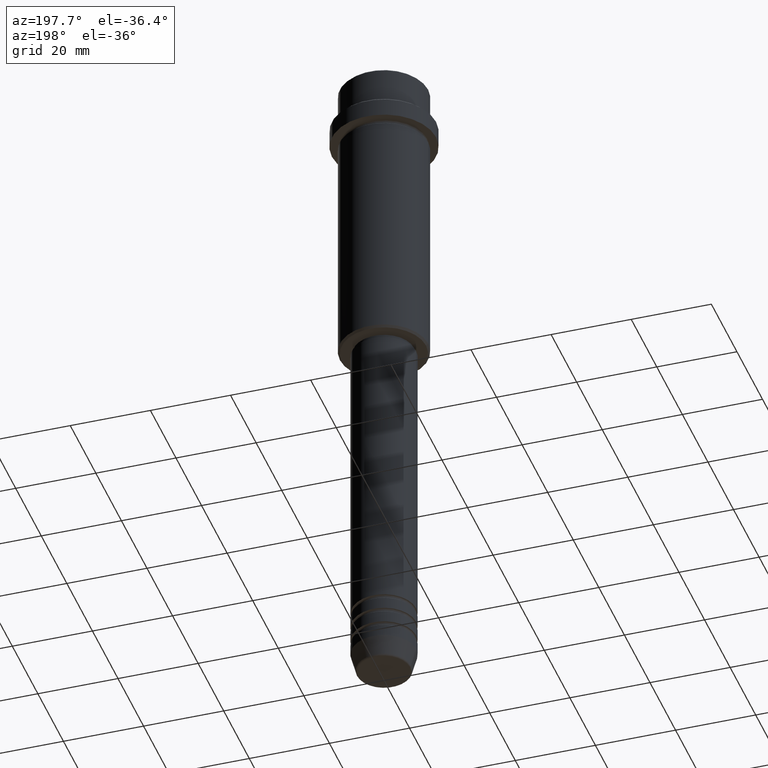
[diagram: clean part render]
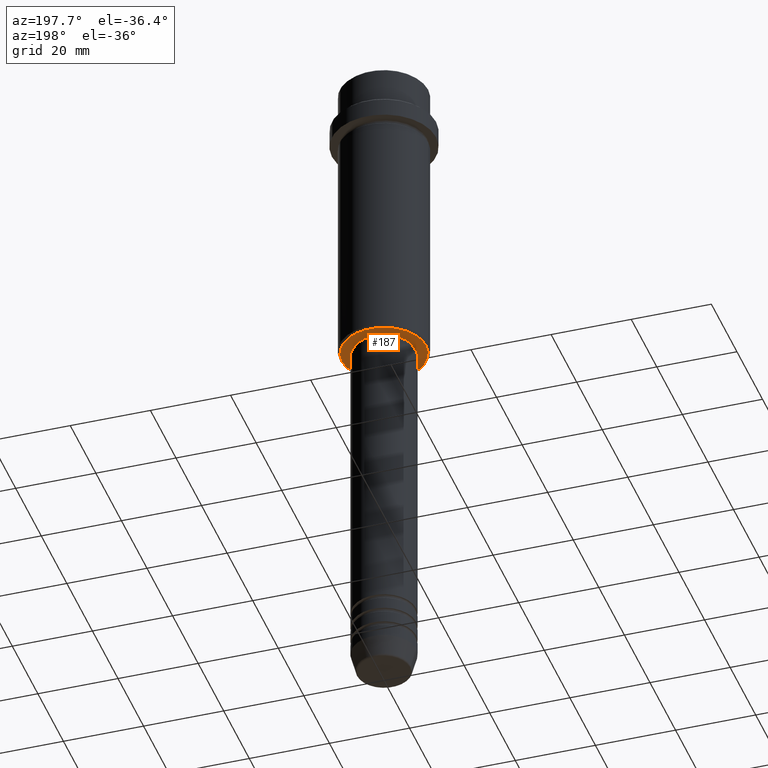
[diagram: same view with one face highlighted and labeled with its STEP entity id]
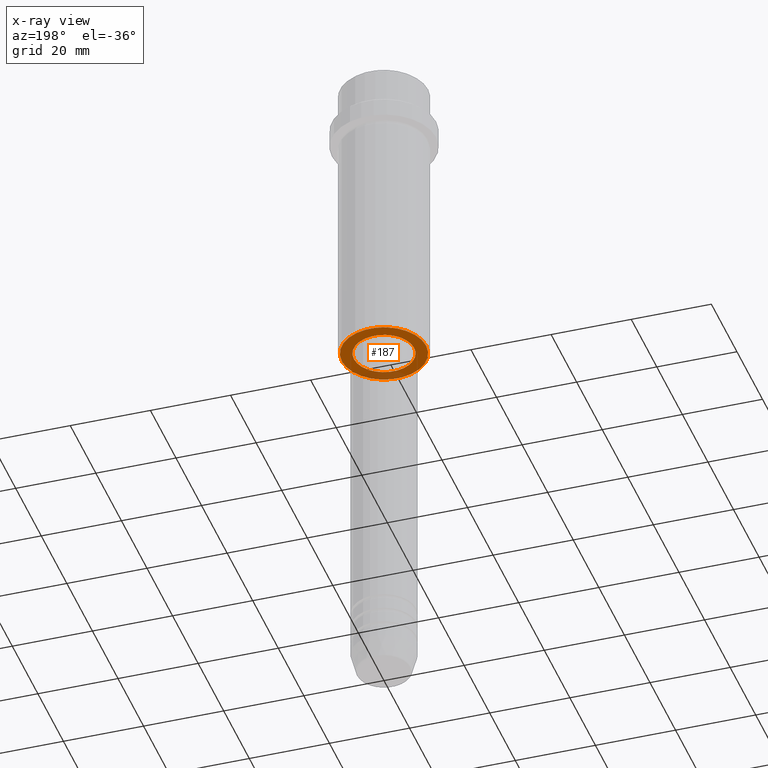
[diagram: x-ray of the same camera — body ghosted, the highlighted face saturated]
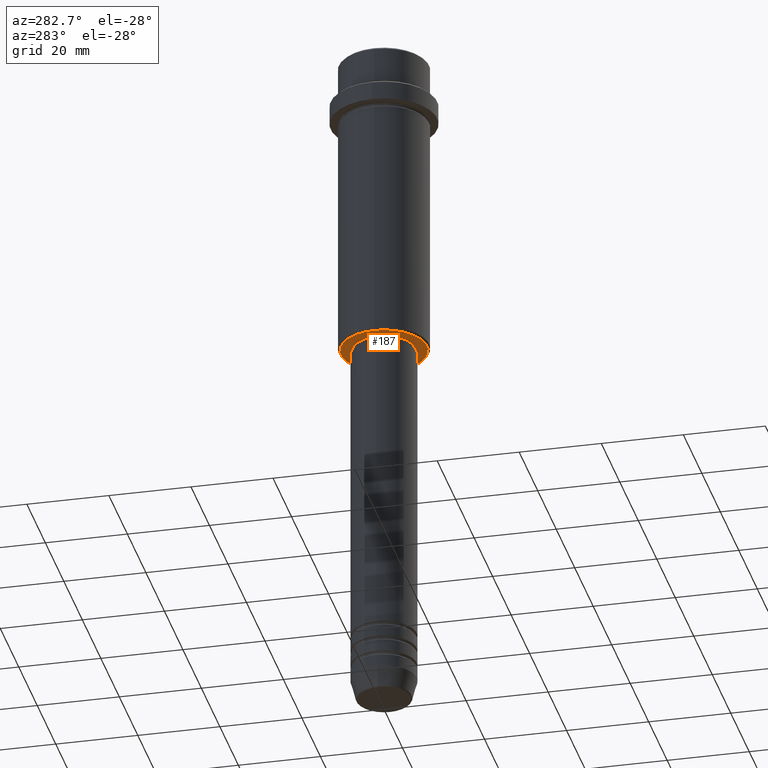
[diagram: same view with one face highlighted and labeled with its STEP entity id]
A machine part, auxiliary view. The second image highlights one B-rep face of the part: STEP entity #187.
The next image is the same camera in x-ray: the body ghosted, the highlighted face saturated — about 15% of this face is hidden behind the body in this view.
A second angle (auxiliary view) of the same face is appended — the face is thin or edge-on in the first view.
In plain terms, the highlighted planar face has unit normal (0, 0, -1).
Its self-contained STEP definition (entity closure, byte-faithful):
#2 = DIRECTION ( 'NONE',  ( 0.000000000000000000, 0.000000000000000000, -1.000000000000000000 ) ) ;
#12 = PLANE ( 'NONE',  #577 ) ;
#30 = FACE_BOUND ( 'NONE', #878, .T. ) ;
#115 = DIRECTION ( 'NONE',  ( 0.000000000000000000, 0.000000000000000000, -1.000000000000000000 ) ) ;
#174 = AXIS2_PLACEMENT_3D ( 'NONE', #270, #473, #900 ) ;
#187 = ADVANCED_FACE ( 'NONE', ( #1204, #30 ), #12, .T. ) ;
#235 = CARTESIAN_POINT ( 'NONE',  ( 0.000000000000000000, 11.00000000000000355, -75.99999999999998579 ) ) ;
#239 = CARTESIAN_POINT ( 'NONE',  ( 0.000000000000000000, 0.000000000000000000, -75.99999999999998579 ) ) ;
#269 = EDGE_CURVE ( 'NONE', #386, #1200, #1163, .T. ) ;
#270 = CARTESIAN_POINT ( 'NONE',  ( 0.000000000000000000, 0.000000000000000000, -75.99999999999998579 ) ) ;
#322 = CIRCLE ( 'NONE', #911, 10.49999999999999467 ) ;
#328 = CARTESIAN_POINT ( 'NONE',  ( 0.000000000000000000, 0.000000000000000000, -75.99999999999998579 ) ) ;
#360 = ORIENTED_EDGE ( 'NONE', *, *, #269, .T. ) ;
#386 = VERTEX_POINT ( 'NONE', #1373 ) ;
#429 = DIRECTION ( 'NONE',  ( -1.000000000000000000, 0.000000000000000000, 0.000000000000000000 ) ) ;
#447 = DIRECTION ( 'NONE',  ( -1.000000000000000000, 0.000000000000000000, -0.000000000000000000 ) ) ;
#473 = DIRECTION ( 'NONE',  ( -0.000000000000000000, -0.000000000000000000, 1.000000000000000000 ) ) ;
#475 = CARTESIAN_POINT ( 'NONE',  ( -10.49999999999999467, 1.316495309083403632E-15, -75.99999999999998579 ) ) ;
#577 = AXIS2_PLACEMENT_3D ( 'NONE', #235, #2, #447 ) ;
#625 = EDGE_CURVE ( 'NONE', #734, #1269, #322, .T. ) ;
#636 = CIRCLE ( 'NONE', #1305, 10.49999999999999467 ) ;
#651 = CARTESIAN_POINT ( 'NONE',  ( 7.499999999999963585, 0.000000000000000000, -75.99999999999998579 ) ) ;
#720 = ORIENTED_EDGE ( 'NONE', *, *, #1076, .T. ) ;
#734 = VERTEX_POINT ( 'NONE', #475 ) ;
#748 = CARTESIAN_POINT ( 'NONE',  ( 0.000000000000000000, 0.000000000000000000, -75.99999999999998579 ) ) ;
#878 = EDGE_LOOP ( 'NONE', ( #720, #360 ) ) ;
#898 = EDGE_LOOP ( 'NONE', ( #1370, #905 ) ) ;
#900 = DIRECTION ( 'NONE',  ( 1.000000000000000000, 0.000000000000000000, 0.000000000000000000 ) ) ;
#905 = ORIENTED_EDGE ( 'NONE', *, *, #625, .T. ) ;
#911 = AXIS2_PLACEMENT_3D ( 'NONE', #239, #1333, #1241 ) ;
#1027 = AXIS2_PLACEMENT_3D ( 'NONE', #748, #1156, #1228 ) ;
#1076 = EDGE_CURVE ( 'NONE', #1200, #386, #1205, .T. ) ;
#1153 = EDGE_CURVE ( 'NONE', #1269, #734, #636, .T. ) ;
#1156 = DIRECTION ( 'NONE',  ( -0.000000000000000000, -0.000000000000000000, 1.000000000000000000 ) ) ;
#1163 = CIRCLE ( 'NONE', #174, 7.499999999999963585 ) ;
#1200 = VERTEX_POINT ( 'NONE', #651 ) ;
#1204 = FACE_OUTER_BOUND ( 'NONE', #898, .T. ) ;
#1205 = CIRCLE ( 'NONE', #1027, 7.499999999999963585 ) ;
#1213 = CARTESIAN_POINT ( 'NONE',  ( 10.49999999999999467, 0.000000000000000000, -75.99999999999998579 ) ) ;
#1228 = DIRECTION ( 'NONE',  ( 1.000000000000000000, 0.000000000000000000, 0.000000000000000000 ) ) ;
#1241 = DIRECTION ( 'NONE',  ( -1.000000000000000000, 0.000000000000000000, 0.000000000000000000 ) ) ;
#1269 = VERTEX_POINT ( 'NONE', #1213 ) ;
#1305 = AXIS2_PLACEMENT_3D ( 'NONE', #328, #115, #429 ) ;
#1333 = DIRECTION ( 'NONE',  ( 0.000000000000000000, 0.000000000000000000, -1.000000000000000000 ) ) ;
#1370 = ORIENTED_EDGE ( 'NONE', *, *, #1153, .T. ) ;
#1373 = CARTESIAN_POINT ( 'NONE',  ( -7.499999999999963585, 9.184850993605104557E-16, -75.99999999999998579 ) ) ;